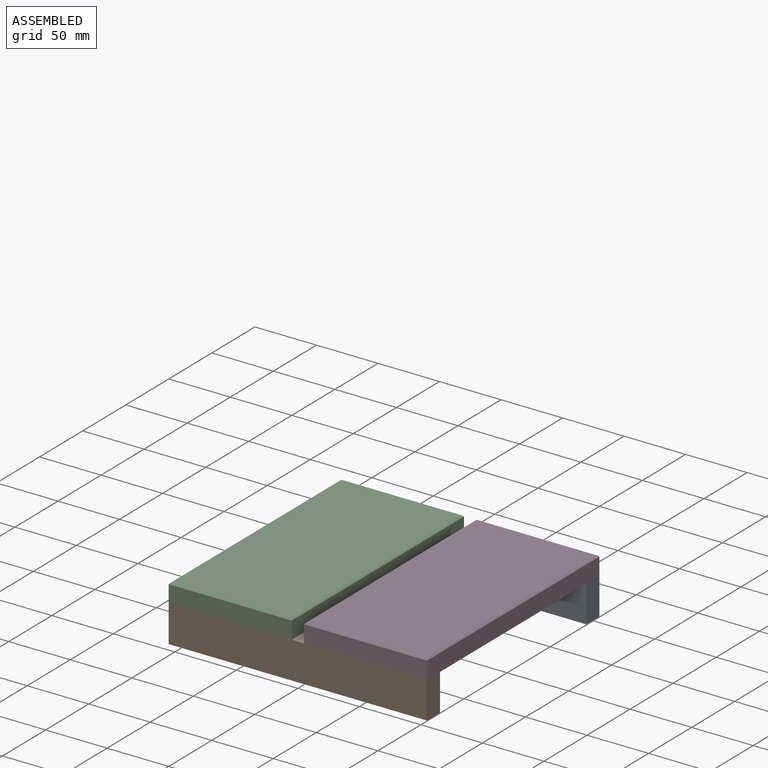
[diagram: assembled view]
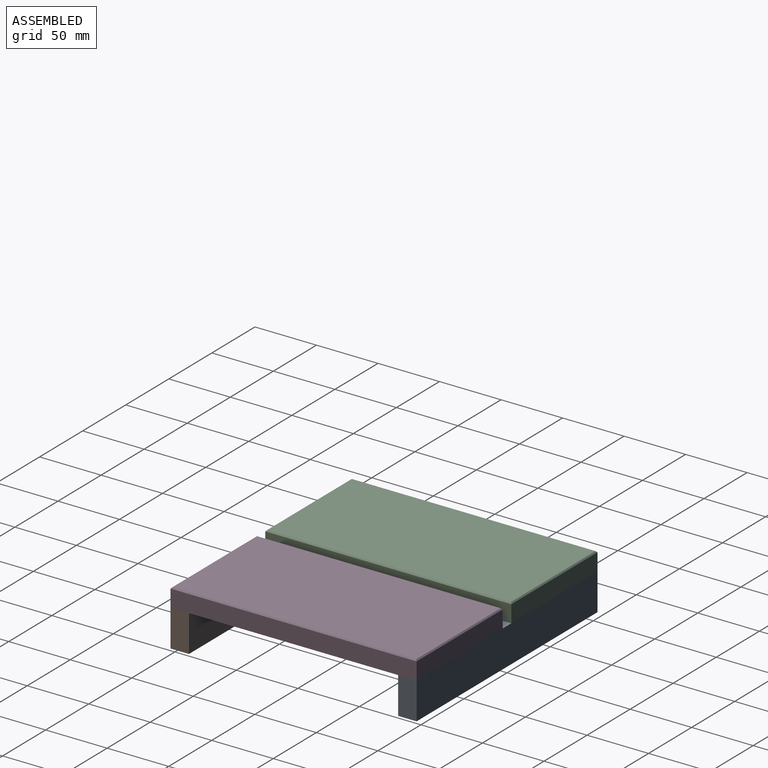
[diagram: assembled view, second angle]
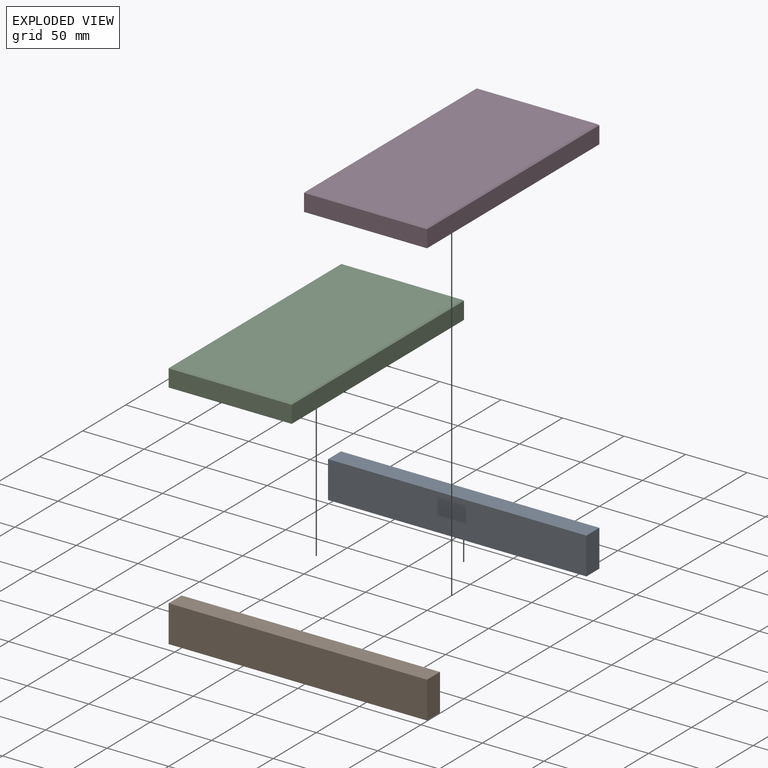
[diagram: exploded view]
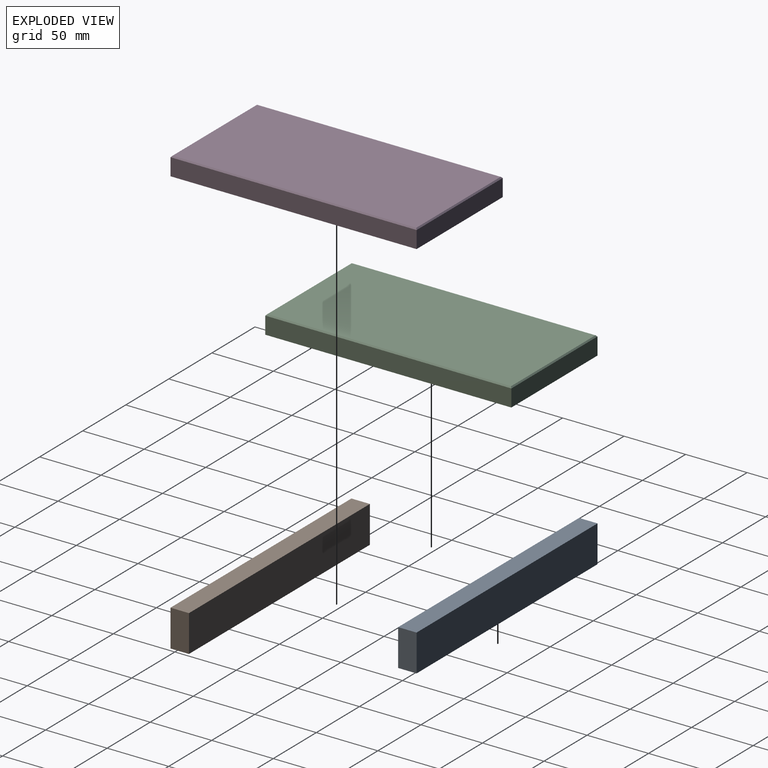
[diagram: exploded view, second angle]
ASSEMBLY  parts=4 mates=3
PART A: 6 faces, bbox 210x15x30 mm
  f0: plane 30x15mm, normal (1,0,0), area 450mm2, adj f1,f3,f4,f5
  f1: plane 210x30mm, normal (0,1,0), area 6300mm2, adj f0,f2,f4,f5
  f2: plane 30x15mm, normal (-1,0,0), area 450mm2, adj f1,f3,f4,f5
  f3: plane 210x30mm, normal (0,-1,0), area 6300mm2, adj f0,f2,f4,f5
  f4: plane 210x15mm, normal (0,0,-1), area 3150mm2, adj f0,f1,f2,f3
  f5: plane 210x15mm, normal (0,0,1), area 3150mm2, adj f0,f1,f2,f3
PART B: 6 faces, bbox 210x15x30 mm
  f0: plane 210x30mm, normal (0,-1,0), area 6300mm2, adj f1,f3,f4,f5
  f1: plane 30x15mm, normal (1,0,0), area 450mm2, adj f0,f2,f4,f5
  f2: plane 210x30mm, normal (0,1,0), area 6300mm2, adj f1,f3,f4,f5
  f3: plane 30x15mm, normal (-1,0,0), area 450mm2, adj f0,f2,f4,f5
  f4: plane 210x15mm, normal (0,0,-1), area 3150mm2, adj f0,f1,f2,f3
  f5: plane 210x15mm, normal (0,0,1), area 3150mm2, adj f0,f1,f2,f3
PART C: 10 faces, bbox 100x200x15 mm
  f0: plane 100x14mm, normal (0,1,0), area 1400mm2, adj f1,f3,f5,f8
  f1: plane 200x14mm, normal (-1,0,0), area 2800mm2, adj f0,f2,f5,f9
  f2: plane 100x14mm, normal (0,-1,0), area 1400mm2, adj f1,f3,f5,f7
  f3: plane 200x14mm, normal (1,0,0), area 2800mm2, adj f0,f2,f5,f6
  f4: plane 198x98mm, normal (0,0,1), area 19404mm2, adj f6,f7,f8,f9
  f5: plane 200x100mm, normal (0,0,-1), area 20000mm2, adj f0,f1,f2,f3
  f6: plane 200x1mm, normal (0.71,0,0.71), area 281.4mm2, adj f3,f4,f7,f8
  f7: plane 100x1mm, normal (0,-0.71,0.71), area 140mm2, adj f2,f4,f6,f9
  f8: plane 100x1mm, normal (0,0.71,0.71), area 140mm2, adj f0,f4,f6,f9
  f9: plane 200x1mm, normal (-0.71,0,0.71), area 281.4mm2, adj f1,f4,f7,f8
PART D: 10 faces, bbox 100x200x15 mm
  f0: plane 200x14mm, normal (-1,0,0), area 2800mm2, adj f1,f3,f5,f7
  f1: plane 100x14mm, normal (0,-1,0), area 1400mm2, adj f0,f2,f5,f6
  f2: plane 200x14mm, normal (1,0,0), area 2800mm2, adj f1,f3,f5,f8
  f3: plane 100x14mm, normal (0,1,0), area 1400mm2, adj f0,f2,f5,f9
  f4: plane 198x98mm, normal (0,0,1), area 19404mm2, adj f6,f7,f8,f9
  f5: plane 200x100mm, normal (0,0,-1), area 20000mm2, adj f0,f1,f2,f3
  f6: plane 100x1mm, normal (0,-0.71,0.71), area 140mm2, adj f1,f4,f7,f8
  f7: plane 200x1mm, normal (-0.71,0,0.71), area 281.4mm2, adj f0,f4,f6,f9
  f8: plane 200x1mm, normal (0.71,0,0.71), area 281.4mm2, adj f2,f4,f6,f9
  f9: plane 100x1mm, normal (0,0.71,0.71), area 140mm2, adj f3,f4,f7,f8
PLACE A at identity
PLACE B at identity fixed
PLACE C at identity
PLACE D at identity
MATE fastened C.f5 <-> B.f5  axis (0,0,1) through (-105,-100,0)mm
MATE fastened A.f5 <-> D.f5  axis (0,0,1) through (105,100,0)mm
MATE fastened B.f5 <-> D.f5  axis (0,0,1) through (105,-100,0)mm
